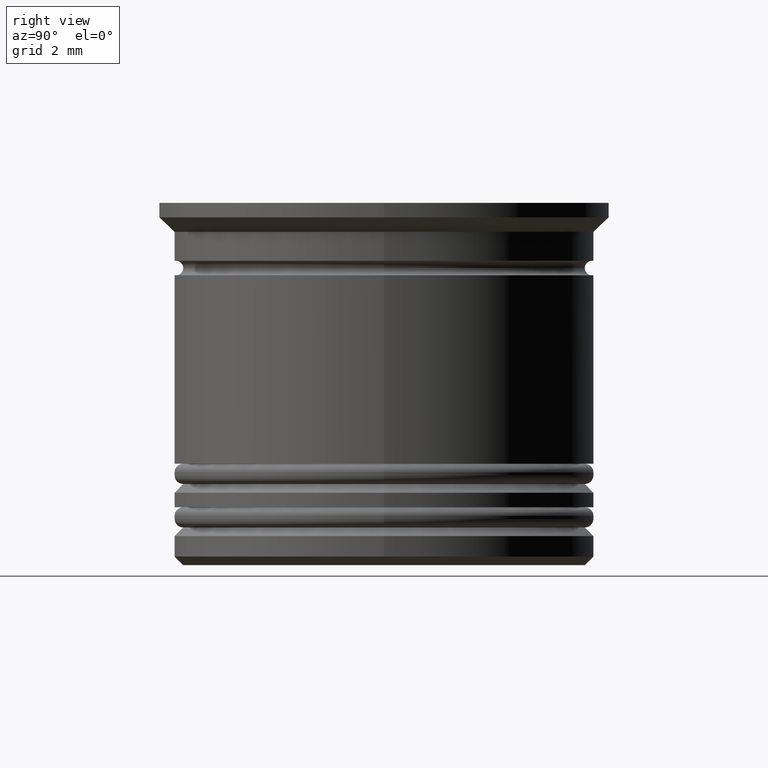
[diagram: clean part render]
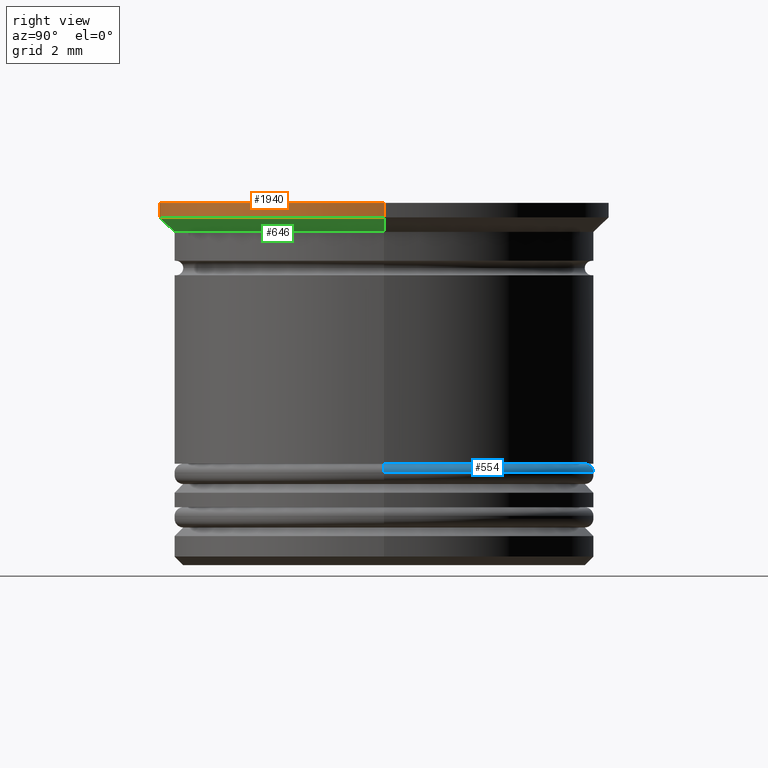
[diagram: same view with three faces highlighted in distinct colors, each labeled with its STEP entity id]
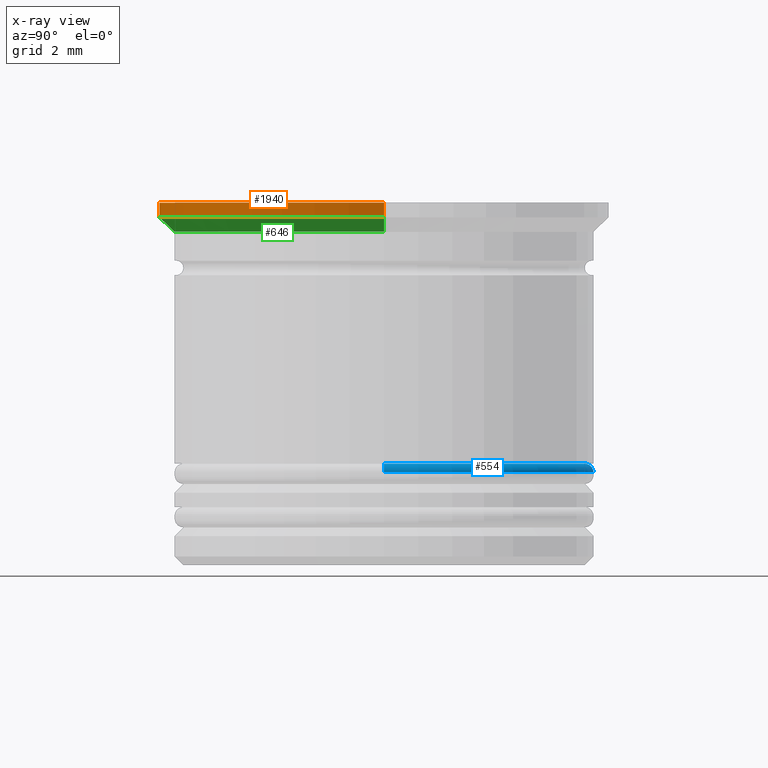
[diagram: x-ray of the same camera — body ghosted, the three highlighted faces saturated]
A machine part, right view with three faces highlighted in distinct colors.
The next image is the same camera in x-ray (body ghosted, the three faces saturated) — at least one of them is partly hidden behind the body in this view.
Their STEP definitions:

[orange] entity #1940 — the highlighted cylindrical surface (partial cylindrical patch) has radius 7.75 mm, axis along (-0, -0, 1).
#97 = CARTESIAN_POINT ( 'NONE',  ( 7.750000000000000000, 0.000000000000000000, -0.5000000000000000000 ) ) ;
#264 = CARTESIAN_POINT ( 'NONE',  ( 7.750000000000000000, 0.000000000000000000, 0.000000000000000000 ) ) ;
#285 = DIRECTION ( 'NONE',  ( -0.000000000000000000, -0.000000000000000000, 1.000000000000000000 ) ) ;
#296 = CARTESIAN_POINT ( 'NONE',  ( 0.000000000000000000, 0.000000000000000000, -0.5000000000000000000 ) ) ;
#312 = VERTEX_POINT ( 'NONE', #1705 ) ;
#430 = CARTESIAN_POINT ( 'NONE',  ( 0.000000000000000000, 0.000000000000000000, 0.000000000000000000 ) ) ;
#454 = VECTOR ( 'NONE', #1965, 1000.000000000000000 ) ;
#463 = DIRECTION ( 'NONE',  ( -1.000000000000000000, 0.000000000000000000, 0.000000000000000000 ) ) ;
#510 = EDGE_LOOP ( 'NONE', ( #1789, #1616, #1204, #1472 ) ) ;
#577 = FACE_OUTER_BOUND ( 'NONE', #510, .T. ) ;
#585 = VERTEX_POINT ( 'NONE', #1924 ) ;
#586 = DIRECTION ( 'NONE',  ( -0.000000000000000000, -0.000000000000000000, 1.000000000000000000 ) ) ;
#615 = DIRECTION ( 'NONE',  ( 1.000000000000000000, 0.000000000000000000, 0.000000000000000000 ) ) ;
#653 = AXIS2_PLACEMENT_3D ( 'NONE', #430, #1041, #1028 ) ;
#657 = VERTEX_POINT ( 'NONE', #97 ) ;
#702 = VERTEX_POINT ( 'NONE', #1356 ) ;
#707 = EDGE_CURVE ( 'NONE', #657, #702, #1650, .T. ) ;
#718 = CIRCLE ( 'NONE', #653, 7.750000000000000000 ) ;
#739 = CARTESIAN_POINT ( 'NONE',  ( 0.000000000000000000, 0.000000000000000000, 0.000000000000000000 ) ) ;
#754 = AXIS2_PLACEMENT_3D ( 'NONE', #296, #1559, #463 ) ;
#782 = EDGE_CURVE ( 'NONE', #585, #702, #718, .T. ) ;
#887 = CYLINDRICAL_SURFACE ( 'NONE', #1634, 7.750000000000000000 ) ;
#988 = VECTOR ( 'NONE', #285, 1000.000000000000000 ) ;
#1028 = DIRECTION ( 'NONE',  ( 1.000000000000000000, 0.000000000000000000, 0.000000000000000000 ) ) ;
#1041 = DIRECTION ( 'NONE',  ( -0.000000000000000000, -0.000000000000000000, 1.000000000000000000 ) ) ;
#1188 = LINE ( 'NONE', #1942, #988 ) ;
#1204 = ORIENTED_EDGE ( 'NONE', *, *, #707, .T. ) ;
#1356 = CARTESIAN_POINT ( 'NONE',  ( 7.750000000000000000, 0.000000000000000000, 0.000000000000000000 ) ) ;
#1472 = ORIENTED_EDGE ( 'NONE', *, *, #782, .F. ) ;
#1559 = DIRECTION ( 'NONE',  ( -0.000000000000000000, -0.000000000000000000, 1.000000000000000000 ) ) ;
#1616 = ORIENTED_EDGE ( 'NONE', *, *, #1987, .T. ) ;
#1634 = AXIS2_PLACEMENT_3D ( 'NONE', #739, #586, #615 ) ;
#1650 = LINE ( 'NONE', #264, #454 ) ;
#1705 = CARTESIAN_POINT ( 'NONE',  ( -7.750000000000000000, 9.491012693391987787E-16, -0.5000000000000000000 ) ) ;
#1731 = CIRCLE ( 'NONE', #754, 7.750000000000000000 ) ;
#1789 = ORIENTED_EDGE ( 'NONE', *, *, #1902, .F. ) ;
#1902 = EDGE_CURVE ( 'NONE', #312, #585, #1188, .T. ) ;
#1924 = CARTESIAN_POINT ( 'NONE',  ( -7.750000000000000000, 9.491012693391987787E-16, 0.000000000000000000 ) ) ;
#1940 = ADVANCED_FACE ( 'NONE', ( #577 ), #887, .T. ) ;
#1942 = CARTESIAN_POINT ( 'NONE',  ( -7.750000000000000000, 9.491012693391987787E-16, 0.000000000000000000 ) ) ;
#1965 = DIRECTION ( 'NONE',  ( -0.000000000000000000, -0.000000000000000000, 1.000000000000000000 ) ) ;
#1987 = EDGE_CURVE ( 'NONE', #312, #657, #1731, .T. ) ;

[blue] entity #554 — the highlighted toroidal blend (fillet) surface has major radius 6.95 mm and minor (blend) radius 0.3 mm.
#118 = CIRCLE ( 'NONE', #942, 6.949999999999999289 ) ;
#152 = AXIS2_PLACEMENT_3D ( 'NONE', #196, #1264, #1244 ) ;
#196 = CARTESIAN_POINT ( 'NONE',  ( 0.000000000000000000, 0.000000000000000000, -9.300000000000002487 ) ) ;
#221 = CIRCLE ( 'NONE', #1273, 7.249999999999999112 ) ;
#248 = EDGE_CURVE ( 'NONE', #600, #1445, #221, .T. ) ;
#395 = CARTESIAN_POINT ( 'NONE',  ( -7.249999999999999112, 8.878689293818310074E-16, -9.300000000000002487 ) ) ;
#407 = CARTESIAN_POINT ( 'NONE',  ( 7.249999999999999112, 0.000000000000000000, -9.300000000000002487 ) ) ;
#466 = DIRECTION ( 'NONE',  ( -1.000000000000000000, -1.224646799147353207E-16, 0.000000000000000000 ) ) ;
#490 = ORIENTED_EDGE ( 'NONE', *, *, #544, .T. ) ;
#544 = EDGE_CURVE ( 'NONE', #1811, #1445, #1276, .T. ) ;
#554 = ADVANCED_FACE ( 'NONE', ( #1548 ), #1887, .T. ) ;
#591 = CARTESIAN_POINT ( 'NONE',  ( 0.000000000000000000, 0.000000000000000000, -9.300000000000002487 ) ) ;
#600 = VERTEX_POINT ( 'NONE', #395 ) ;
#714 = DIRECTION ( 'NONE',  ( 0.000000000000000000, 0.000000000000000000, -1.000000000000000000 ) ) ;
#768 = DIRECTION ( 'NONE',  ( -0.000000000000000000, -0.000000000000000000, 1.000000000000000000 ) ) ;
#827 = ORIENTED_EDGE ( 'NONE', *, *, #1889, .F. ) ;
#869 = CARTESIAN_POINT ( 'NONE',  ( 6.949999999999999289, 8.694992273946207746E-16, -9.000000000000001776 ) ) ;
#923 = DIRECTION ( 'NONE',  ( -1.224646799147353207E-16, 1.000000000000000000, 0.000000000000000000 ) ) ;
#928 = ORIENTED_EDGE ( 'NONE', *, *, #1124, .F. ) ;
#942 = AXIS2_PLACEMENT_3D ( 'NONE', #1176, #768, #1643 ) ;
#1124 = EDGE_CURVE ( 'NONE', #1811, #1896, #118, .T. ) ;
#1176 = CARTESIAN_POINT ( 'NONE',  ( 0.000000000000000000, 0.000000000000000000, -9.000000000000001776 ) ) ;
#1210 = DIRECTION ( 'NONE',  ( 0.000000000000000000, 0.000000000000000000, -1.000000000000000000 ) ) ;
#1218 = DIRECTION ( 'NONE',  ( -0.000000000000000000, -1.000000000000000000, -0.000000000000000000 ) ) ;
#1244 = DIRECTION ( 'NONE',  ( -1.000000000000000000, 0.000000000000000000, 0.000000000000000000 ) ) ;
#1264 = DIRECTION ( 'NONE',  ( 0.000000000000000000, 0.000000000000000000, -1.000000000000000000 ) ) ;
#1273 = AXIS2_PLACEMENT_3D ( 'NONE', #591, #1210, #1830 ) ;
#1276 = CIRCLE ( 'NONE', #1952, 0.2999999999999999334 ) ;
#1341 = AXIS2_PLACEMENT_3D ( 'NONE', #1516, #1218, #714 ) ;
#1359 = CARTESIAN_POINT ( 'NONE',  ( -6.949999999999999289, 0.000000000000000000, -9.000000000000001776 ) ) ;
#1386 = ORIENTED_EDGE ( 'NONE', *, *, #248, .F. ) ;
#1445 = VERTEX_POINT ( 'NONE', #407 ) ;
#1516 = CARTESIAN_POINT ( 'NONE',  ( -6.949999999999999289, 0.000000000000000000, -9.300000000000002487 ) ) ;
#1548 = FACE_OUTER_BOUND ( 'NONE', #1920, .T. ) ;
#1574 = CARTESIAN_POINT ( 'NONE',  ( 6.949999999999999289, 8.511295254074104432E-16, -9.300000000000002487 ) ) ;
#1643 = DIRECTION ( 'NONE',  ( -1.000000000000000000, 0.000000000000000000, 0.000000000000000000 ) ) ;
#1811 = VERTEX_POINT ( 'NONE', #869 ) ;
#1826 = CIRCLE ( 'NONE', #1341, 0.2999999999999999334 ) ;
#1830 = DIRECTION ( 'NONE',  ( -1.000000000000000000, 0.000000000000000000, 0.000000000000000000 ) ) ;
#1887 = TOROIDAL_SURFACE ( 'NONE', #152, 6.949999999999999289, 0.2999999999999999889 ) ;
#1889 = EDGE_CURVE ( 'NONE', #1896, #600, #1826, .T. ) ;
#1896 = VERTEX_POINT ( 'NONE', #1359 ) ;
#1920 = EDGE_LOOP ( 'NONE', ( #928, #490, #1386, #827 ) ) ;
#1952 = AXIS2_PLACEMENT_3D ( 'NONE', #1574, #923, #466 ) ;

[green] entity #646 — the highlighted conical surface has half-angle 45 deg.
#39 = DIRECTION ( 'NONE',  ( 0.7071067811865482389, 0.000000000000000000, 0.7071067811865469066 ) ) ;
#86 = VECTOR ( 'NONE', #452, 999.9999999999998863 ) ;
#97 = CARTESIAN_POINT ( 'NONE',  ( 7.750000000000000000, 0.000000000000000000, -0.5000000000000000000 ) ) ;
#112 = AXIS2_PLACEMENT_3D ( 'NONE', #842, #1450, #852 ) ;
#212 = CONICAL_SURFACE ( 'NONE', #112, 7.750000000000000000, 0.7853981633974491672 ) ;
#287 = ORIENTED_EDGE ( 'NONE', *, *, #1672, .T. ) ;
#296 = CARTESIAN_POINT ( 'NONE',  ( 0.000000000000000000, 0.000000000000000000, -0.5000000000000000000 ) ) ;
#306 = CARTESIAN_POINT ( 'NONE',  ( 7.750000000000000000, 0.000000000000000000, -0.5000000000000000000 ) ) ;
#312 = VERTEX_POINT ( 'NONE', #1705 ) ;
#452 = DIRECTION ( 'NONE',  ( -0.7071067811865482389, 8.659560562354942719E-17, 0.7071067811865469066 ) ) ;
#463 = DIRECTION ( 'NONE',  ( -1.000000000000000000, 0.000000000000000000, 0.000000000000000000 ) ) ;
#526 = ORIENTED_EDGE ( 'NONE', *, *, #1987, .F. ) ;
#541 = FACE_OUTER_BOUND ( 'NONE', #822, .T. ) ;
#555 = VERTEX_POINT ( 'NONE', #1701 ) ;
#598 = CIRCLE ( 'NONE', #1446, 7.249999999999997335 ) ;
#646 = ADVANCED_FACE ( 'NONE', ( #541 ), #212, .T. ) ;
#657 = VERTEX_POINT ( 'NONE', #97 ) ;
#754 = AXIS2_PLACEMENT_3D ( 'NONE', #296, #1559, #463 ) ;
#822 = EDGE_LOOP ( 'NONE', ( #1012, #287, #1531, #526 ) ) ;
#842 = CARTESIAN_POINT ( 'NONE',  ( 0.000000000000000000, 0.000000000000000000, -0.5000000000000000000 ) ) ;
#849 = EDGE_CURVE ( 'NONE', #555, #312, #1242, .T. ) ;
#852 = DIRECTION ( 'NONE',  ( 1.000000000000000000, 0.000000000000000000, 0.000000000000000000 ) ) ;
#854 = CARTESIAN_POINT ( 'NONE',  ( 0.000000000000000000, 0.000000000000000000, -0.9999999999999995559 ) ) ;
#1012 = ORIENTED_EDGE ( 'NONE', *, *, #849, .F. ) ;
#1138 = DIRECTION ( 'NONE',  ( -0.000000000000000000, -0.000000000000000000, 1.000000000000000000 ) ) ;
#1242 = LINE ( 'NONE', #1383, #86 ) ;
#1253 = LINE ( 'NONE', #306, #1481 ) ;
#1300 = CARTESIAN_POINT ( 'NONE',  ( 7.249999999999997335, 0.000000000000000000, -0.9999999999999995559 ) ) ;
#1383 = CARTESIAN_POINT ( 'NONE',  ( -7.750000000000000000, 9.491012693391987787E-16, -0.5000000000000000000 ) ) ;
#1435 = DIRECTION ( 'NONE',  ( 1.000000000000000000, 0.000000000000000000, 0.000000000000000000 ) ) ;
#1446 = AXIS2_PLACEMENT_3D ( 'NONE', #854, #1138, #1435 ) ;
#1450 = DIRECTION ( 'NONE',  ( -0.000000000000000000, -0.000000000000000000, 1.000000000000000000 ) ) ;
#1481 = VECTOR ( 'NONE', #39, 999.9999999999998863 ) ;
#1531 = ORIENTED_EDGE ( 'NONE', *, *, #1983, .T. ) ;
#1559 = DIRECTION ( 'NONE',  ( -0.000000000000000000, -0.000000000000000000, 1.000000000000000000 ) ) ;
#1672 = EDGE_CURVE ( 'NONE', #555, #1711, #598, .T. ) ;
#1701 = CARTESIAN_POINT ( 'NONE',  ( -7.249999999999997335, 8.878689293818308102E-16, -0.9999999999999995559 ) ) ;
#1705 = CARTESIAN_POINT ( 'NONE',  ( -7.750000000000000000, 9.491012693391987787E-16, -0.5000000000000000000 ) ) ;
#1711 = VERTEX_POINT ( 'NONE', #1300 ) ;
#1731 = CIRCLE ( 'NONE', #754, 7.750000000000000000 ) ;
#1983 = EDGE_CURVE ( 'NONE', #1711, #657, #1253, .T. ) ;
#1987 = EDGE_CURVE ( 'NONE', #312, #657, #1731, .T. ) ;